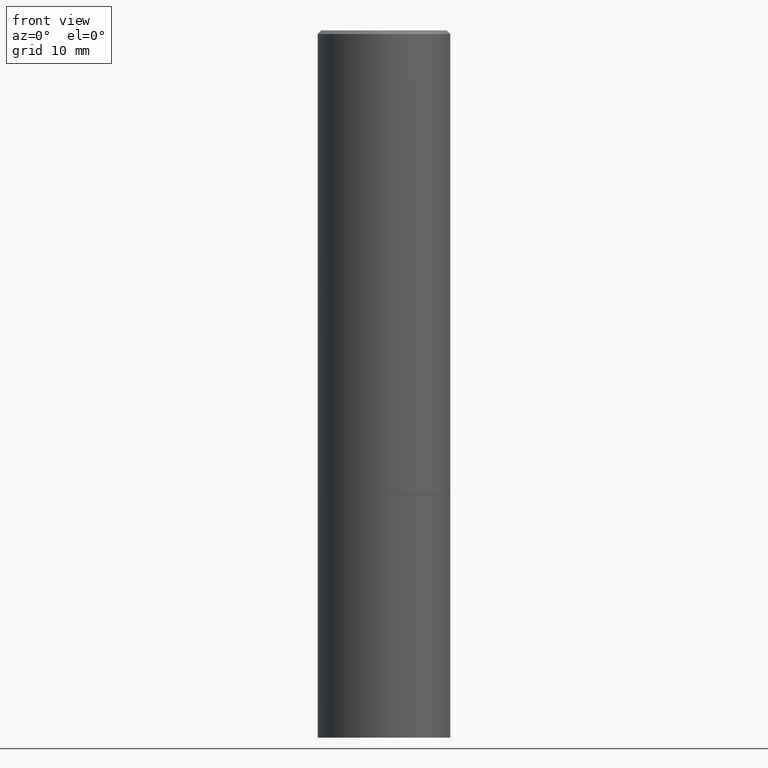
[diagram: clean part render]
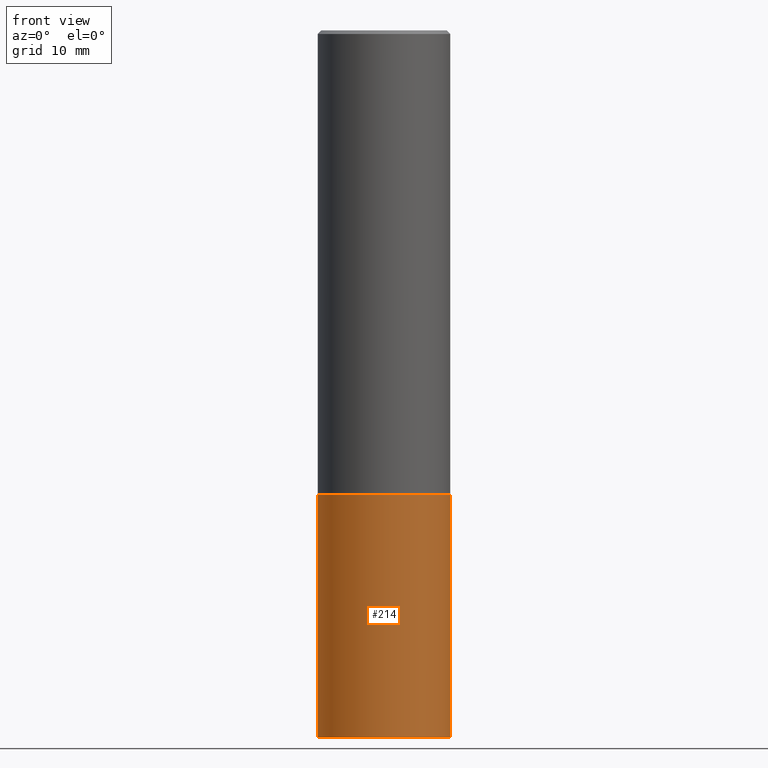
[diagram: same view with one face highlighted and labeled with its STEP entity id]
A machine part, front view. The second image highlights one B-rep face of the part: STEP entity #214.
In plain terms, the highlighted cylindrical surface (partial cylindrical patch) has radius 9.525 mm, axis along (-0, 0, 1).
Its self-contained STEP definition (entity closure, byte-faithful):
#4 = VECTOR ( 'NONE', #7, 39.37007874015748143 ) ;
#7 = DIRECTION ( 'NONE',  ( -2.445468806185136877E-29, 3.491481338843145188E-15, 1.000000000000000000 ) ) ;
#10 = EDGE_CURVE ( 'NONE', #213, #320, #273, .T. ) ;
#22 = DIRECTION ( 'NONE',  ( 1.000000000000000000, -6.982962677686266711E-15, 0.000000000000000000 ) ) ;
#27 = EDGE_CURVE ( 'NONE', #194, #169, #46, .T. ) ;
#31 = ORIENTED_EDGE ( 'NONE', *, *, #255, .F. ) ;
#32 = CARTESIAN_POINT ( 'NONE',  ( 0.3750000000000000555, -1.658453635950493392E-14, -4.000000000000000000 ) ) ;
#33 = CARTESIAN_POINT ( 'NONE',  ( -0.3750000000000000555, -8.900996675817542197E-15, -4.000000000000000000 ) ) ;
#43 = ORIENTED_EDGE ( 'NONE', *, *, #27, .F. ) ;
#46 = CIRCLE ( 'NONE', #277, 0.3750000000000000555 ) ;
#72 = CARTESIAN_POINT ( 'NONE',  ( 9.781875224740546387E-29, -1.396592535537258233E-14, -4.000000000000000000 ) ) ;
#75 = LINE ( 'NONE', #362, #4 ) ;
#86 = VECTOR ( 'NONE', #199, 39.37007874015748143 ) ;
#87 = ORIENTED_EDGE ( 'NONE', *, *, #195, .T. ) ;
#95 = DIRECTION ( 'NONE',  ( -2.445468806185136597E-29, 3.491481338843145583E-15, 1.000000000000000000 ) ) ;
#146 = DIRECTION ( 'NONE',  ( 1.000000000000000000, -6.982962677686266711E-15, 0.000000000000000000 ) ) ;
#164 = LINE ( 'NONE', #227, #86 ) ;
#169 = VERTEX_POINT ( 'NONE', #240 ) ;
#178 = FACE_OUTER_BOUND ( 'NONE', #202, .T. ) ;
#194 = VERTEX_POINT ( 'NONE', #229 ) ;
#195 = EDGE_CURVE ( 'NONE', #320, #169, #75, .T. ) ;
#199 = DIRECTION ( 'NONE',  ( -2.445468806185136877E-29, 3.491481338843145188E-15, 1.000000000000000000 ) ) ;
#202 = EDGE_LOOP ( 'NONE', ( #31, #253, #87, #43 ) ) ;
#207 = DIRECTION ( 'NONE',  ( -2.445468806185136597E-29, 3.491481338843145583E-15, 1.000000000000000000 ) ) ;
#213 = VERTEX_POINT ( 'NONE', #33 ) ;
#214 = ADVANCED_FACE ( 'NONE', ( #178 ), #305, .T. ) ;
#227 = CARTESIAN_POINT ( 'NONE',  ( -0.3750000000000000555, 2.664535259100376091E-15, -1.844600658845589598E-29 ) ) ;
#229 = CARTESIAN_POINT ( 'NONE',  ( -0.3750000000000000555, -8.900996675817542197E-15, -2.624999999999999556 ) ) ;
#240 = CARTESIAN_POINT ( 'NONE',  ( 0.3750000000000000555, -1.178374951859560505E-14, -2.624999999999999556 ) ) ;
#252 = CARTESIAN_POINT ( 'NONE',  ( 0.000000000000000000, 0.000000000000000000, 0.000000000000000000 ) ) ;
#253 = ORIENTED_EDGE ( 'NONE', *, *, #10, .T. ) ;
#255 = EDGE_CURVE ( 'NONE', #213, #194, #164, .T. ) ;
#266 = AXIS2_PLACEMENT_3D ( 'NONE', #72, #302, #22 ) ;
#273 = CIRCLE ( 'NONE', #266, 0.3750000000000000555 ) ;
#277 = AXIS2_PLACEMENT_3D ( 'NONE', #332, #95, #146 ) ;
#302 = DIRECTION ( 'NONE',  ( -2.445468806185136597E-29, 3.491481338843145583E-15, 1.000000000000000000 ) ) ;
#305 = CYLINDRICAL_SURFACE ( 'NONE', #341, 0.3750000000000000555 ) ;
#320 = VERTEX_POINT ( 'NONE', #32 ) ;
#332 = CARTESIAN_POINT ( 'NONE',  ( 6.419355616235982445E-29, -9.165138514463255034E-15, -2.624999999999999556 ) ) ;
#336 = DIRECTION ( 'NONE',  ( 1.000000000000000000, -6.982962677686265922E-15, 4.876176775795935793E-29 ) ) ;
#341 = AXIS2_PLACEMENT_3D ( 'NONE', #252, #207, #336 ) ;
#362 = CARTESIAN_POINT ( 'NONE',  ( 0.3750000000000000555, -2.618611004132350016E-15, 1.828566290923476203E-29 ) ) ;